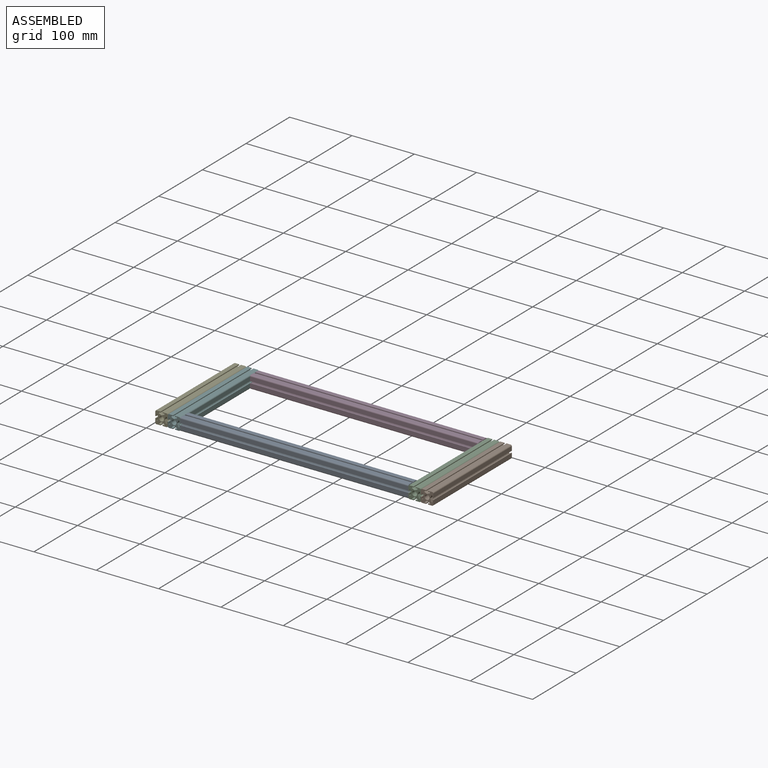
[diagram: assembled view]
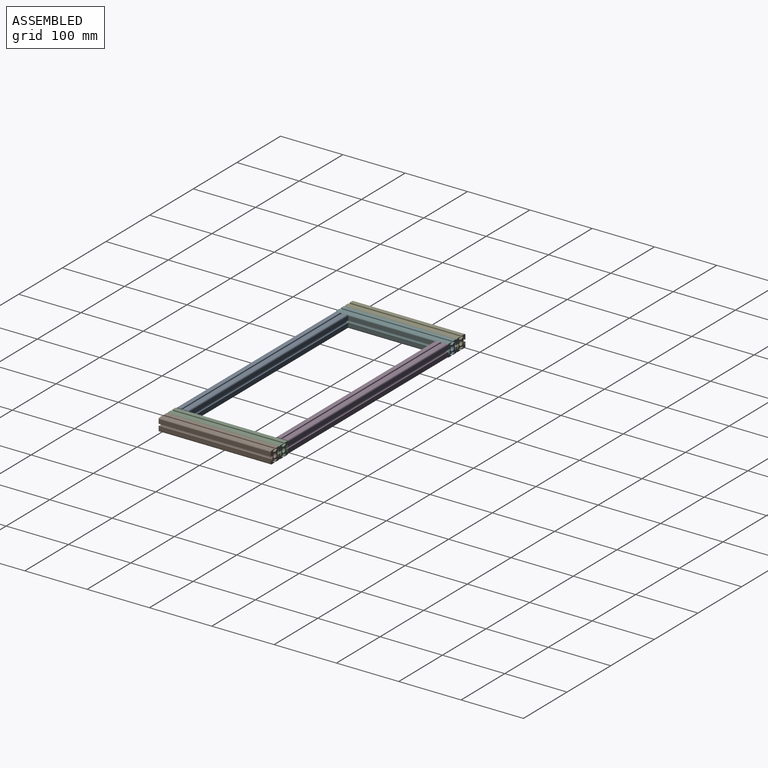
[diagram: assembled view, second angle]
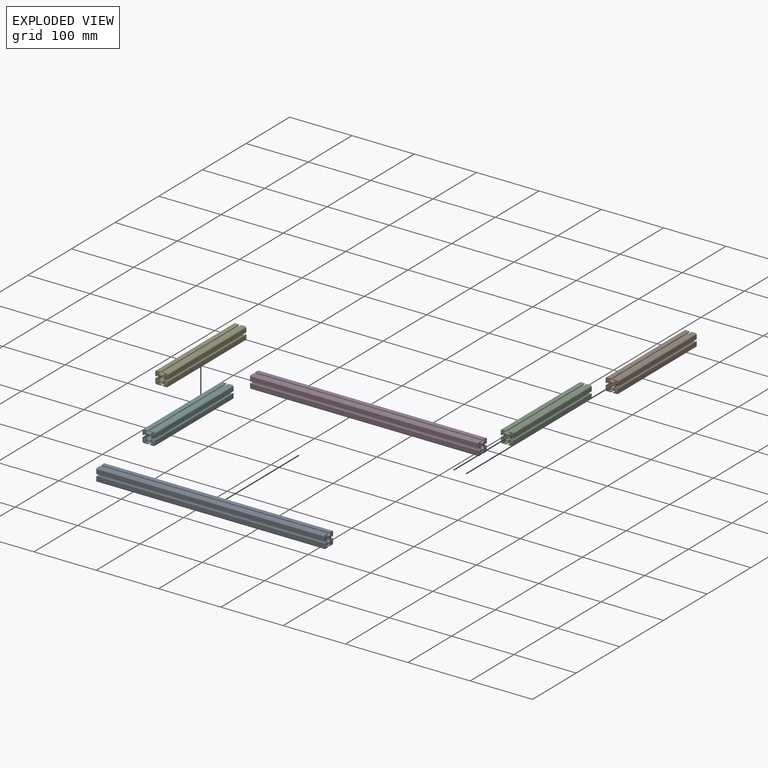
[diagram: exploded view]
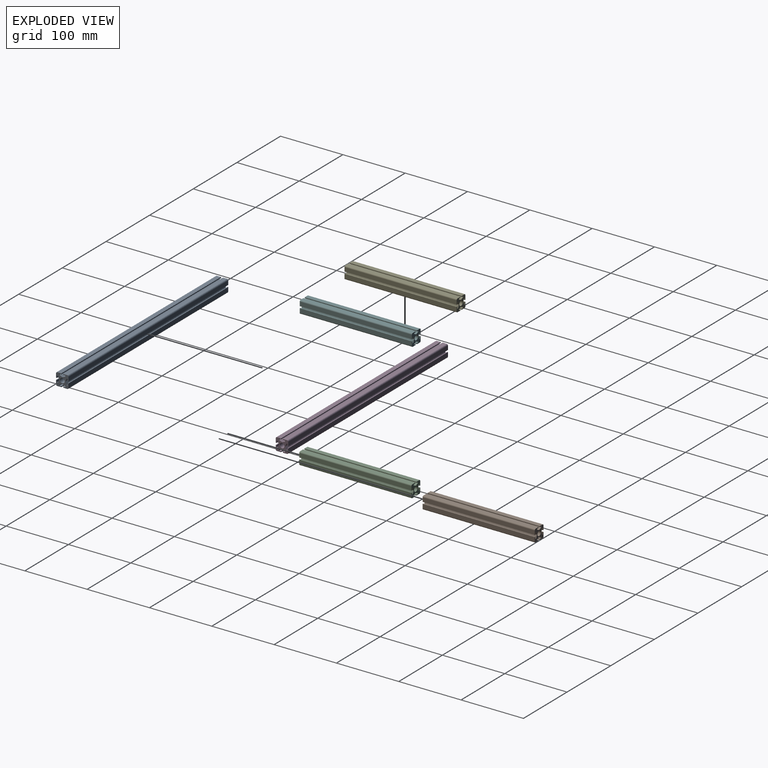
[diagram: exploded view, second angle]
ASSEMBLY  parts=6 mates=15
PART A: 47 faces, bbox 20x366x20 mm
  f0: plane 366x1.42mm, normal (1,0,0), area 519.6mm2, adj f1,f44,f45,f46
  f1: plane 366x6.51mm, normal (0,0,1), area 2380.8mm2, adj f0,f2,f45,f46
  f2: cylinder r=2mm len=366mm, axis (0,1,0), area 1149.8mm2, adj f1,f3,f45,f46
  f3: plane 366x6.51mm, normal (-1,0,0), area 2380.8mm2, adj f2,f4,f45,f46
  f4: plane 366x1.42mm, normal (0,0,-1), area 519.6mm2, adj f3,f5,f45,f46
  f5: plane 366x3.23mm, normal (1,0,0), area 1180.3mm2, adj f4,f6,f45,f46
  f6: plane 366x1.59mm, normal (0,0,-1), area 582.5mm2, adj f5,f7,f45,f46
  f7: plane 366x4.72mm, normal (-0.92,0,-0.39), area 1874.7mm2, adj f6,f8,f45,f46
  f8: plane 366x4.72mm, normal (-0.92,0,0.39), area 1874.7mm2, adj f7,f9,f45,f46
  f9: plane 366x1.59mm, normal (0,0,1), area 582.5mm2, adj f8,f10,f45,f46
  f10: plane 366x3.23mm, normal (1,0,0), area 1180.3mm2, adj f9,f11,f45,f46
  f11: plane 366x1.42mm, normal (0,0,1), area 519.6mm2, adj f10,f12,f45,f46
  f12: plane 366x6.51mm, normal (-1,0,0), area 2380.8mm2, adj f11,f13,f45,f46
  f13: cylinder r=2mm len=366mm, axis (0,1,0), area 1149.8mm2, adj f12,f14,f45,f46
  f14: plane 366x6.51mm, normal (0,0,-1), area 2380.8mm2, adj f13,f15,f45,f46
  f15: plane 366x1.42mm, normal (1,0,0), area 519.6mm2, adj f14,f16,f45,f46
  f16: plane 366x3.23mm, normal (0,0,1), area 1180.3mm2, adj f15,f17,f45,f46
  f17: plane 366x1.59mm, normal (1,0,0), area 582.5mm2, adj f16,f18,f45,f46
  f18: plane 366x4.72mm, normal (0.39,0,-0.92), area 1874.7mm2, adj f17,f19,f45,f46
  f19: plane 366x4.72mm, normal (-0.39,0,-0.92), area 1874.7mm2, adj f18,f20,f45,f46
  f20: plane 366x1.59mm, normal (-1,0,0), area 582.5mm2, adj f19,f21,f45,f46
  f21: plane 366x3.23mm, normal (0,0,1), area 1180.3mm2, adj f20,f22,f45,f46
  f22: plane 366x1.42mm, normal (-1,0,0), area 519.6mm2, adj f21,f23,f45,f46
  f23: plane 366x6.51mm, normal (0,0,-1), area 2380.8mm2, adj f22,f24,f45,f46
  f24: cylinder r=2mm len=366mm, axis (0,1,0), area 1149.8mm2, adj f23,f25,f45,f46
  f25: plane 366x6.51mm, normal (1,0,0), area 2380.8mm2, adj f24,f26,f45,f46
  f26: plane 366x1.42mm, normal (0,0,1), area 519.6mm2, adj f25,f27,f45,f46
  f27: plane 366x3.23mm, normal (-1,0,0), area 1180.3mm2, adj f26,f28,f45,f46
  f28: plane 366x1.59mm, normal (0,0,1), area 582.5mm2, adj f27,f29,f45,f46
  f29: plane 366x4.72mm, normal (0.92,0,0.39), area 1874.7mm2, adj f28,f30,f45,f46
  f30: plane 366x4.72mm, normal (0.92,0,-0.39), area 1874.7mm2, adj f29,f31,f45,f46
  f31: plane 366x1.59mm, normal (0,0,-1), area 582.5mm2, adj f30,f32,f45,f46
  f32: plane 366x3.23mm, normal (-1,0,0), area 1180.3mm2, adj f31,f33,f45,f46
  f33: plane 366x1.42mm, normal (0,0,-1), area 519.6mm2, adj f32,f34,f45,f46
  f34: plane 366x6.51mm, normal (1,0,0), area 2380.8mm2, adj f33,f35,f45,f46
  f35: cylinder r=2mm len=366mm, axis (0,1,0), area 1149.8mm2, adj f34,f36,f45,f46
  f36: plane 366x6.51mm, normal (0,0,1), area 2380.8mm2, adj f35,f37,f45,f46
  f37: plane 366x1.42mm, normal (-1,0,0), area 519.6mm2, adj f36,f38,f45,f46
  f38: plane 366x3.23mm, normal (0,0,-1), area 1180.3mm2, adj f37,f39,f45,f46
  f39: plane 366x1.59mm, normal (-1,0,0), area 582.5mm2, adj f38,f40,f45,f46
  f40: plane 366x4.72mm, normal (-0.39,0,0.92), area 1874.7mm2, adj f39,f41,f45,f46
  f41: plane 366x4.72mm, normal (0.39,0,0.92), area 1874.7mm2, adj f40,f42,f45,f46
  f42: plane 366x1.59mm, normal (1,0,0), area 582.5mm2, adj f41,f44,f45,f46
  f43: cylinder r=3.86mm len=366mm, axis (0,1,0), area 8881.7mm2, adj f45,f46
  f44: plane 366x3.23mm, normal (0,0,-1), area 1180.3mm2, adj f0,f42,f45,f46
  f45: plane 20x20mm, normal (0,-1,0), area 235.1mm2, adj f0,f1,f2,f3,f4,f5,f6,f7
  f46: plane 20x20mm, normal (0,1,0), area 235.1mm2, adj f0,f1,f2,f3,f4,f5,f6,f7
PART B: 47 faces, bbox 20x180x20 mm
  f0: plane 180x1.42mm, normal (1,0,0), area 255.5mm2, adj f1,f44,f45,f46
  f1: plane 180x6.51mm, normal (0,0,1), area 1170.9mm2, adj f0,f2,f45,f46
  f2: cylinder r=2mm len=180mm, axis (0,1,0), area 565.5mm2, adj f1,f3,f45,f46
  f3: plane 180x6.51mm, normal (-1,0,0), area 1170.9mm2, adj f2,f4,f45,f46
  f4: plane 180x1.42mm, normal (0,0,-1), area 255.5mm2, adj f3,f5,f45,f46
  f5: plane 180x3.23mm, normal (1,0,0), area 580.5mm2, adj f4,f6,f45,f46
  f6: plane 180x1.59mm, normal (0,0,-1), area 286.5mm2, adj f5,f7,f45,f46
  f7: plane 180x4.72mm, normal (-0.92,0,-0.39), area 922mm2, adj f6,f8,f45,f46
  f8: plane 180x4.72mm, normal (-0.92,0,0.39), area 922mm2, adj f7,f9,f45,f46
  f9: plane 180x1.59mm, normal (0,0,1), area 286.5mm2, adj f8,f10,f45,f46
  f10: plane 180x3.23mm, normal (1,0,0), area 580.5mm2, adj f9,f11,f45,f46
  f11: plane 180x1.42mm, normal (0,0,1), area 255.5mm2, adj f10,f12,f45,f46
  f12: plane 180x6.51mm, normal (-1,0,0), area 1170.9mm2, adj f11,f13,f45,f46
  f13: cylinder r=2mm len=180mm, axis (0,1,0), area 565.5mm2, adj f12,f14,f45,f46
  f14: plane 180x6.51mm, normal (0,0,-1), area 1170.9mm2, adj f13,f15,f45,f46
  f15: plane 180x1.42mm, normal (1,0,0), area 255.5mm2, adj f14,f16,f45,f46
  f16: plane 180x3.23mm, normal (0,0,1), area 580.5mm2, adj f15,f17,f45,f46
  f17: plane 180x1.59mm, normal (1,0,0), area 286.5mm2, adj f16,f18,f45,f46
  f18: plane 180x4.72mm, normal (0.39,0,-0.92), area 922mm2, adj f17,f19,f45,f46
  f19: plane 180x4.72mm, normal (-0.39,0,-0.92), area 922mm2, adj f18,f20,f45,f46
  f20: plane 180x1.59mm, normal (-1,0,0), area 286.5mm2, adj f19,f21,f45,f46
  f21: plane 180x3.23mm, normal (0,0,1), area 580.5mm2, adj f20,f22,f45,f46
  f22: plane 180x1.42mm, normal (-1,0,0), area 255.5mm2, adj f21,f23,f45,f46
  f23: plane 180x6.51mm, normal (0,0,-1), area 1170.9mm2, adj f22,f24,f45,f46
  f24: cylinder r=2mm len=180mm, axis (0,1,0), area 565.5mm2, adj f23,f25,f45,f46
  f25: plane 180x6.51mm, normal (1,0,0), area 1170.9mm2, adj f24,f26,f45,f46
  f26: plane 180x1.42mm, normal (0,0,1), area 255.5mm2, adj f25,f27,f45,f46
  f27: plane 180x3.23mm, normal (-1,0,0), area 580.5mm2, adj f26,f28,f45,f46
  f28: plane 180x1.59mm, normal (0,0,1), area 286.5mm2, adj f27,f29,f45,f46
  f29: plane 180x4.72mm, normal (0.92,0,0.39), area 922mm2, adj f28,f30,f45,f46
  f30: plane 180x4.72mm, normal (0.92,0,-0.39), area 922mm2, adj f29,f31,f45,f46
  f31: plane 180x1.59mm, normal (0,0,-1), area 286.5mm2, adj f30,f32,f45,f46
  f32: plane 180x3.23mm, normal (-1,0,0), area 580.5mm2, adj f31,f33,f45,f46
  f33: plane 180x1.42mm, normal (0,0,-1), area 255.5mm2, adj f32,f34,f45,f46
  f34: plane 180x6.51mm, normal (1,0,0), area 1170.9mm2, adj f33,f35,f45,f46
  f35: cylinder r=2mm len=180mm, axis (0,1,0), area 565.5mm2, adj f34,f36,f45,f46
  f36: plane 180x6.51mm, normal (0,0,1), area 1170.9mm2, adj f35,f37,f45,f46
  f37: plane 180x1.42mm, normal (-1,0,0), area 255.5mm2, adj f36,f38,f45,f46
  f38: plane 180x3.23mm, normal (0,0,-1), area 580.5mm2, adj f37,f39,f45,f46
  f39: plane 180x1.59mm, normal (-1,0,0), area 286.5mm2, adj f38,f40,f45,f46
  f40: plane 180x4.72mm, normal (-0.39,0,0.92), area 922mm2, adj f39,f41,f45,f46
  f41: plane 180x4.72mm, normal (0.39,0,0.92), area 922mm2, adj f40,f42,f45,f46
  f42: plane 180x1.59mm, normal (1,0,0), area 286.5mm2, adj f41,f44,f45,f46
  f43: cylinder r=3.86mm len=180mm, axis (0,1,0), area 4368mm2, adj f45,f46
  f44: plane 180x3.23mm, normal (0,0,-1), area 580.5mm2, adj f0,f42,f45,f46
  f45: plane 20x20mm, normal (0,-1,0), area 235.1mm2, adj f0,f1,f2,f3,f4,f5,f6,f7
  f46: plane 20x20mm, normal (0,1,0), area 235.1mm2, adj f0,f1,f2,f3,f4,f5,f6,f7
PART C: same geometry as B
PART D: same geometry as A
PART E: same geometry as B
PART F: same geometry as B
PLACE A rot(axis=(0.58,-0.58,0.58),120deg) t=(251.37,14.74,0)mm
PLACE B t=(647.37,184.74,0)mm fixed
PLACE C t=(627.37,184.74,0)mm
PLACE D rot(axis=(0.58,0.58,-0.58),120deg) t=(617.37,174.74,0)mm
PLACE E t=(221.37,184.74,0)mm
PLACE F t=(241.37,184.74,0)mm
MATE planar D.f45 <-> F.f34  axis (-1,0,0) through (251.37,172.38,-5.99)mm
MATE planar A.f36 <-> C.f43  axis (0,-1,0) through (434.37,4.74,4.75)mm
MATE planar C.f43 <-> B.f43  axis (0,-1,0) through (627.37,4.74,0)mm
MATE planar A.f34 <-> F.f36  axis (0,0,1) through (434.37,9.99,10)mm
MATE planar C.f36 <-> B.f36  axis (0,0,1) through (632.12,94.74,10)mm
MATE planar A.f25 <-> C.f1  axis (0,0,1) through (434.37,19.48,10)mm
MATE planar A.f36 <-> F.f35  axis (0,-1,0) through (434.37,4.74,4.75)mm
MATE planar D.f3 <-> F.f36  axis (0,0,1) through (434.37,169.99,10)mm
MATE planar F.f45 <-> E.f43  axis (0,-1,0) through (236.65,4.74,6.99)mm
MATE planar F.f46 <-> D.f14  axis (0,1,0) through (246.09,184.74,6.99)mm
MATE planar A.f43 <-> C.f3  axis (1,0,0) through (617.37,14.74,0)mm
MATE planar A.f46 <-> F.f25  axis (-1,0,0) through (251.37,4.74,8)mm
MATE planar E.f36 <-> F.f36  axis (0,0,1) through (229.37,4.74,10)mm
MATE planar F.f12 <-> E.f34  axis (-1,0,0) through (231.37,94.74,-4.75)mm
MATE planar C.f25 <-> B.f3  axis (1,0,0) through (637.37,94.74,-4.75)mm
